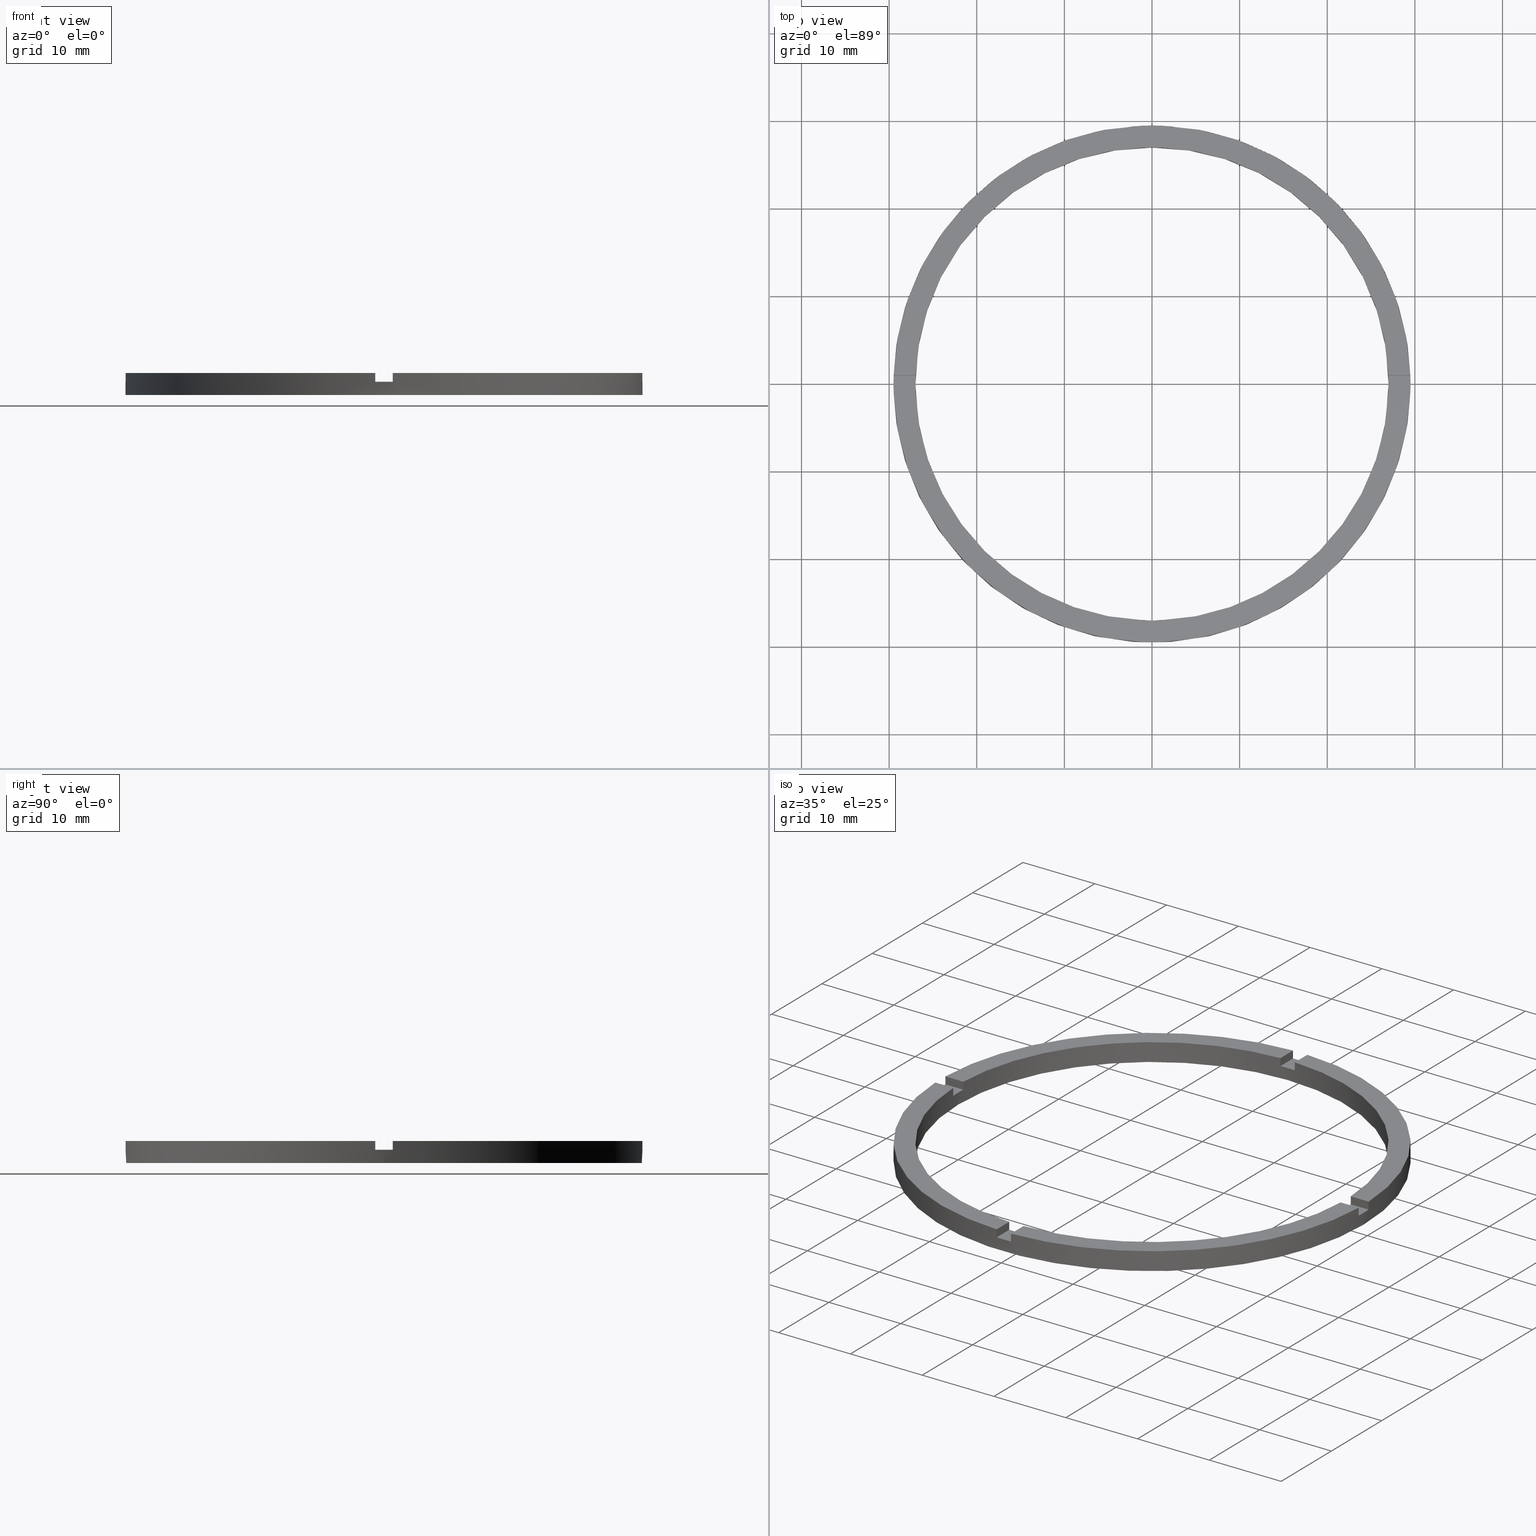
[diagram: canonical four-view strip — front | top / right | iso, engineering-drawing reading convention]
A machine part, canonical four-view strip (front | top / right | iso — engineering-drawing reading convention). The complete STEP part file that produces these views, byte-faithful:
ISO-10303-21;
HEADER;
FILE_DESCRIPTION (( 'STEP AP203' ),
    '1' );
FILE_NAME ('514122.step',
    '2024-12-26T02:39:37',
    ( 'MSI' ),
    ( '' ),
    'SwSTEP 2.0',
    'SolidWorks 2020',
    '' );
FILE_SCHEMA (( 'CONFIG_CONTROL_DESIGN' ));
ENDSEC;

DATA;
#1 = LINE ( 'NONE', #587, #252 ) ;
#2 = PLANE ( 'NONE',  #616 ) ;
#3 = CIRCLE ( 'NONE', #139, 27.00000000000000000 ) ;
#4 =( LENGTH_UNIT ( ) NAMED_UNIT ( * ) SI_UNIT ( .MILLI., .METRE. ) );
#5 = CIRCLE ( 'NONE', #579, 27.00000000000000000 ) ;
#6 = VECTOR ( 'NONE', #585, 1000.000000000000000 ) ;
#7 = DIRECTION ( 'NONE',  ( 1.951563910473908228E-16, -1.000000000000000000, 0.000000000000000000 ) ) ;
#8 = FACE_OUTER_BOUND ( 'NONE', #201, .T. ) ;
#9 = DIRECTION ( 'NONE',  ( 0.000000000000000000, 0.000000000000000000, 1.000000000000000000 ) ) ;
#10 = LINE ( 'NONE', #686, #268 ) ;
#11 = CIRCLE ( 'NONE', #441, 27.00000000000000000 ) ;
#12 = AXIS2_PLACEMENT_3D ( 'NONE', #379, #434, #514 ) ;
#13 = EDGE_CURVE ( 'NONE', #750, #728, #457, .T. ) ;
#14 = EDGE_CURVE ( 'NONE', #164, #415, #193, .T. ) ;
#15 = CARTESIAN_POINT ( 'NONE',  ( 0.9999999999998369082, -19.50000000000018474, 1.500000000000000000 ) ) ;
#16 = APPROVAL_STATUS ( 'not_yet_approved' ) ;
#17 = PERSON_AND_ORGANIZATION ( #143, #498 ) ;
#18 = EDGE_CURVE ( 'NONE', #236, #504, #195, .T. ) ;
#19 = APPROVAL_DATE_TIME ( #303, #106 ) ;
#20 = COORDINATED_UNIVERSAL_TIME_OFFSET ( 8, 0, .AHEAD. ) ;
#21 = PERSON_AND_ORGANIZATION ( #143, #498 ) ;
#22 = AXIS2_PLACEMENT_3D ( 'NONE', #138, #308, #87 ) ;
#23 = CARTESIAN_POINT ( 'NONE',  ( 19.50000000000000000, 0.9999999999998404610, 1.500000000000000000 ) ) ;
#24 = CIRCLE ( 'NONE', #708, 29.50000000000000355 ) ;
#25 = LINE ( 'NONE', #489, #547 ) ;
#26 = DIRECTION ( 'NONE',  ( -0.000000000000000000, 0.000000000000000000, 1.000000000000000000 ) ) ;
#27 = PERSON_AND_ORGANIZATION ( #143, #498 ) ;
#28 = DATE_AND_TIME ( #282, #291 ) ;
#29 = APPROVAL_DATE_TIME ( #28, #279 ) ;
#30 = COORDINATED_UNIVERSAL_TIME_OFFSET ( 8, 0, .AHEAD. ) ;
#31 = VECTOR ( 'NONE', #160, 1000.000000000000000 ) ;
#32 = DIRECTION ( 'NONE',  ( 0.000000000000000000, 0.000000000000000000, 1.000000000000000000 ) ) ;
#33 = AXIS2_PLACEMENT_3D ( 'NONE', #343, #588, #630 ) ;
#34 = VECTOR ( 'NONE', #652, 1000.000000000000000 ) ;
#35 = DIRECTION ( 'NONE',  ( -0.000000000000000000, -1.000000000000000000, -0.000000000000000000 ) ) ;
#36 = DATE_AND_TIME ( #310, #562 ) ;
#37 = LINE ( 'NONE', #414, #311 ) ;
#38 = FACE_OUTER_BOUND ( 'NONE', #662, .T. ) ;
#39 = LINE ( 'NONE', #596, #40 ) ;
#40 = VECTOR ( 'NONE', #353, 1000.000000000000000 ) ;
#41 = CARTESIAN_POINT ( 'NONE',  ( 0.000000000000000000, 0.000000000000000000, 1.500000000000000000 ) ) ;
#42 = FACE_OUTER_BOUND ( 'NONE', #422, .T. ) ;
#43 = EDGE_CURVE ( 'NONE', #151, #684, #459, .T. ) ;
#44 = LINE ( 'NONE', #152, #567 ) ;
#45 = LINE ( 'NONE', #60, #320 ) ;
#46 = DIRECTION ( 'NONE',  ( -0.000000000000000000, -0.000000000000000000, -1.000000000000000000 ) ) ;
#47 = CARTESIAN_POINT ( 'NONE',  ( -29.48304597561114093, 0.9999999999999749090, 2.500000000000000000 ) ) ;
#48 = FACE_OUTER_BOUND ( 'NONE', #689, .T. ) ;
#49 = LINE ( 'NONE', #76, #323 ) ;
#50 = DIRECTION ( 'NONE',  ( 1.000000000000000000, 0.000000000000000000, 0.000000000000000000 ) ) ;
#51 = CARTESIAN_POINT ( 'NONE',  ( 0.000000000000000000, 0.000000000000000000, 2.500000000000000000 ) ) ;
#52 = EDGE_CURVE ( 'NONE', #196, #220, #197, .T. ) ;
#53 = EDGE_CURVE ( 'NONE', #413, #780, #571, .T. ) ;
#54 = DIRECTION ( 'NONE',  ( -0.000000000000000000, -0.000000000000000000, -1.000000000000000000 ) ) ;
#55 = AXIS2_PLACEMENT_3D ( 'NONE', #632, #690, #336 ) ;
#56 = ADVANCED_BREP_SHAPE_REPRESENTATION ( '514122', ( #408, #539 ), #692 ) ;
#57 = DIRECTION ( 'NONE',  ( 0.000000000000000000, 0.000000000000000000, 1.000000000000000000 ) ) ;
#58 = CC_DESIGN_PERSON_AND_ORGANIZATION_ASSIGNMENT ( #548, #717, ( #361 ) ) ;
#59 = DIRECTION ( 'NONE',  ( -0.000000000000000000, -0.000000000000000000, -1.000000000000000000 ) ) ;
#60 = CARTESIAN_POINT ( 'NONE',  ( -29.50000000000000355, 0.000000000000000000, 2.500000000000000000 ) ) ;
#61 = CARTESIAN_POINT ( 'NONE',  ( 0.000000000000000000, 0.000000000000000000, 1.500000000000000000 ) ) ;
#62 = PLANE ( 'NONE',  #625 ) ;
#63 = CARTESIAN_POINT ( 'NONE',  ( 0.000000000000000000, 0.000000000000000000, 0.000000000000000000 ) ) ;
#64 = DATE_TIME_ROLE ( 'creation_date' ) ;
#65 = APPROVAL_ROLE ( '' ) ;
#66 = AXIS2_PLACEMENT_3D ( 'NONE', #329, #599, #359 ) ;
#67 = AXIS2_PLACEMENT_3D ( 'NONE', #23, #68, #112 ) ;
#68 = DIRECTION ( 'NONE',  ( -6.505213034913027837E-17, 1.000000000000000000, 0.000000000000000000 ) ) ;
#69 = ADVANCED_FACE ( 'NONE', ( #42 ), #557, .F. ) ;
#70 = CARTESIAN_POINT ( 'NONE',  ( 27.00000000000000000, 3.306546357697853733E-15, 0.000000000000000000 ) ) ;
#71 = DIRECTION ( 'NONE',  ( 1.000000000000000000, 0.000000000000000000, 0.000000000000000000 ) ) ;
#72 = EDGE_CURVE ( 'NONE', #504, #179, #550, .T. ) ;
#73 = CARTESIAN_POINT ( 'NONE',  ( 0.000000000000000000, 0.000000000000000000, 1.500000000000000000 ) ) ;
#74 = PLANE ( 'NONE',  #66 ) ;
#75 = DIRECTION ( 'NONE',  ( 0.000000000000000000, 1.000000000000000000, 0.000000000000000000 ) ) ;
#76 = CARTESIAN_POINT ( 'NONE',  ( -27.00000000000000000, 0.000000000000000000, 2.500000000000000000 ) ) ;
#77 = APPROVAL ( #406, 'δָ��' ) ;
#78 = DIRECTION ( 'NONE',  ( 1.000000000000000000, 0.000000000000000000, 0.000000000000000000 ) ) ;
#79 = DIRECTION ( 'NONE',  ( 0.000000000000000000, 0.000000000000000000, 1.000000000000000000 ) ) ;
#80 = DIRECTION ( 'NONE',  ( 1.000000000000000000, 0.000000000000000000, -0.000000000000000000 ) ) ;
#81 = CARTESIAN_POINT ( 'NONE',  ( 29.50000000000000355, 3.612708057484692393E-15, 1.500000000000000000 ) ) ;
#82 = DIRECTION ( 'NONE',  ( 0.000000000000000000, -0.000000000000000000, 1.000000000000000000 ) ) ;
#83 = DIRECTION ( 'NONE',  ( -1.000000000000000000, -1.301042606982605567E-16, 0.000000000000000000 ) ) ;
#84 = DIRECTION ( 'NONE',  ( 0.000000000000000000, -0.000000000000000000, 1.000000000000000000 ) ) ;
#85 = EDGE_CURVE ( 'NONE', #470, #131, #25, .T. ) ;
#86 = AXIS2_PLACEMENT_3D ( 'NONE', #629, #771, #50 ) ;
#87 = DIRECTION ( 'NONE',  ( 1.000000000000000000, 0.000000000000000000, 0.000000000000000000 ) ) ;
#88 = ADVANCED_FACE ( 'NONE', ( #568 ), #62, .T. ) ;
#89 = DIRECTION ( 'NONE',  ( -0.000000000000000000, -1.000000000000000000, -0.000000000000000000 ) ) ;
#90 = CARTESIAN_POINT ( 'NONE',  ( 29.48304597561113383, -1.000000000000158984, 1.500000000000000000 ) ) ;
#91 = FACE_OUTER_BOUND ( 'NONE', #178, .T. ) ;
#92 = DIRECTION ( 'NONE',  ( 1.000000000000000000, 0.000000000000000000, 0.000000000000000000 ) ) ;
#93 = LINE ( 'NONE', #659, #100 ) ;
#94 = AXIS2_PLACEMENT_3D ( 'NONE', #513, #647, #537 ) ;
#95 = CARTESIAN_POINT ( 'NONE',  ( 29.50000000000000355, 3.612708057484692393E-15, 0.000000000000000000 ) ) ;
#96 = EDGE_CURVE ( 'NONE', #704, #491, #565, .T. ) ;
#97 = DIRECTION ( 'NONE',  ( -0.000000000000000000, -0.000000000000000000, -1.000000000000000000 ) ) ;
#98 = AXIS2_PLACEMENT_3D ( 'NONE', #150, #182, #330 ) ;
#99 = EDGE_CURVE ( 'NONE', #421, #491, #307, .T. ) ;
#100 = VECTOR ( 'NONE', #79, 1000.000000000000000 ) ;
#101 = CARTESIAN_POINT ( 'NONE',  ( 0.9999999999999756861, 29.48304597561114093, 2.500000000000000000 ) ) ;
#102 = DIRECTION ( 'NONE',  ( 0.000000000000000000, 0.000000000000000000, 1.000000000000000000 ) ) ;
#103 = CARTESIAN_POINT ( 'NONE',  ( 29.48304597561114448, 0.9999999999998411271, 1.500000000000000000 ) ) ;
#104 = AXIS2_PLACEMENT_3D ( 'NONE', #502, #574, #364 ) ;
#105 = VECTOR ( 'NONE', #765, 1000.000000000000000 ) ;
#106 = APPROVAL ( #492, 'δָ��' ) ;
#107 = CC_DESIGN_SECURITY_CLASSIFICATION ( #610, ( #392 ) ) ;
#108 = PLANE ( 'NONE',  #744 ) ;
#109 = FACE_OUTER_BOUND ( 'NONE', #488, .T. ) ;
#110 = APPLICATION_CONTEXT ( 'configuration controlled 3d designs of mechanical parts and assemblies' ) ;
#111 = LINE ( 'NONE', #198, #115 ) ;
#112 = DIRECTION ( 'NONE',  ( -1.000000000000000000, -6.505213034913027837E-17, 0.000000000000000000 ) ) ;
#113 = EDGE_CURVE ( 'NONE', #407, #691, #564, .T. ) ;
#114 = CIRCLE ( 'NONE', #119, 29.50000000000000355 ) ;
#115 = VECTOR ( 'NONE', #188, 1000.000000000000000 ) ;
#116 = DIRECTION ( 'NONE',  ( -0.000000000000000000, 0.000000000000000000, 1.000000000000000000 ) ) ;
#117 = DIRECTION ( 'NONE',  ( 0.000000000000000000, 0.000000000000000000, 1.000000000000000000 ) ) ;
#118 = DIRECTION ( 'NONE',  ( 0.000000000000000000, 0.000000000000000000, 1.000000000000000000 ) ) ;
#119 = AXIS2_PLACEMENT_3D ( 'NONE', #423, #736, #622 ) ;
#120 = EDGE_CURVE ( 'NONE', #223, #715, #24, .T. ) ;
#121 = EDGE_CURVE ( 'NONE', #409, #215, #293, .T. ) ;
#122 = DIRECTION ( 'NONE',  ( 1.000000000000000000, 0.000000000000000000, -0.000000000000000000 ) ) ;
#123 = DIRECTION ( 'NONE',  ( 1.000000000000000000, 0.000000000000000000, 0.000000000000000000 ) ) ;
#124 = CARTESIAN_POINT ( 'NONE',  ( 29.48304597561113383, -1.000000000000158984, 2.500000000000000000 ) ) ;
#125 = EDGE_CURVE ( 'NONE', #248, #693, #37, .T. ) ;
#126 = FACE_OUTER_BOUND ( 'NONE', #417, .T. ) ;
#127 = CARTESIAN_POINT ( 'NONE',  ( 0.000000000000000000, 0.000000000000000000, 0.000000000000000000 ) ) ;
#128 = CARTESIAN_POINT ( 'NONE',  ( -29.48304597561113738, -1.000000000000025091, 2.500000000000000000 ) ) ;
#129 = CC_DESIGN_PERSON_AND_ORGANIZATION_ASSIGNMENT ( #296, #602, ( #392 ) ) ;
#130 = CC_DESIGN_APPROVAL ( #279, ( #610 ) ) ;
#131 = VERTEX_POINT ( 'NONE', #607 ) ;
#132 = ORIENTED_EDGE ( 'NONE', *, *, #778, .F. ) ;
#133 = VECTOR ( 'NONE', #340, 1000.000000000000000 ) ;
#134 = DIRECTION ( 'NONE',  ( 0.000000000000000000, 0.000000000000000000, 1.000000000000000000 ) ) ;
#135 = ORIENTED_EDGE ( 'NONE', *, *, #362, .T. ) ;
#136 = ADVANCED_FACE ( 'NONE', ( #38 ), #555, .F. ) ;
#137 = ORIENTED_EDGE ( 'NONE', *, *, #43, .F. ) ;
#138 = CARTESIAN_POINT ( 'NONE',  ( 0.000000000000000000, 0.000000000000000000, 0.000000000000000000 ) ) ;
#139 = AXIS2_PLACEMENT_3D ( 'NONE', #61, #318, #466 ) ;
#140 = DIRECTION ( 'NONE',  ( 1.000000000000000000, 0.000000000000000000, 0.000000000000000000 ) ) ;
#141 = DIRECTION ( 'NONE',  ( 0.000000000000000000, 0.000000000000000000, 1.000000000000000000 ) ) ;
#142 = ORIENTED_EDGE ( 'NONE', *, *, #608, .F. ) ;
#143 = PERSON ( 'δָ��', 'δָ��', 'δָ��', ('δָ��'), ('δָ��'), ('δָ��') ) ;
#144 = ORIENTED_EDGE ( 'NONE', *, *, #72, .T. ) ;
#145 = VERTEX_POINT ( 'NONE', #186 ) ;
#146 = VERTEX_POINT ( 'NONE', #271 ) ;
#147 = DIRECTION ( 'NONE',  ( 0.000000000000000000, 0.000000000000000000, 1.000000000000000000 ) ) ;
#148 = EDGE_CURVE ( 'NONE', #750, #504, #566, .T. ) ;
#149 = ORIENTED_EDGE ( 'NONE', *, *, #396, .T. ) ;
#150 = CARTESIAN_POINT ( 'NONE',  ( 0.000000000000000000, 0.000000000000000000, 2.500000000000000000 ) ) ;
#151 = VERTEX_POINT ( 'NONE', #305 ) ;
#152 = CARTESIAN_POINT ( 'NONE',  ( 19.50000000000000000, -1.000000000000159650, 1.500000000000000000 ) ) ;
#153 = ORIENTED_EDGE ( 'NONE', *, *, #284, .F. ) ;
#154 = ORIENTED_EDGE ( 'NONE', *, *, #600, .F. ) ;
#155 = ORIENTED_EDGE ( 'NONE', *, *, #309, .T. ) ;
#156 = ORIENTED_EDGE ( 'NONE', *, *, #259, .T. ) ;
#157 = EDGE_LOOP ( 'NONE', ( #726, #443, #700, #758 ) ) ;
#158 = ORIENTED_EDGE ( 'NONE', *, *, #386, .T. ) ;
#159 = ORIENTED_EDGE ( 'NONE', *, *, #148, .F. ) ;
#160 = DIRECTION ( 'NONE',  ( 1.000000000000000000, 6.505213034913027837E-17, 0.000000000000000000 ) ) ;
#161 = VERTEX_POINT ( 'NONE', #90 ) ;
#162 = ORIENTED_EDGE ( 'NONE', *, *, #600, .T. ) ;
#163 = ORIENTED_EDGE ( 'NONE', *, *, #85, .F. ) ;
#164 = VERTEX_POINT ( 'NONE', #594 ) ;
#165 = ORIENTED_EDGE ( 'NONE', *, *, #357, .T. ) ;
#166 = EDGE_CURVE ( 'NONE', #228, #223, #317, .T. ) ;
#167 = EDGE_CURVE ( 'NONE', #223, #754, #45, .T. ) ;
#168 = EDGE_LOOP ( 'NONE', ( #505, #493, #477, #722 ) ) ;
#169 = ORIENTED_EDGE ( 'NONE', *, *, #13, .F. ) ;
#170 = AXIS2_PLACEMENT_3D ( 'NONE', #373, #82, #577 ) ;
#171 = CARTESIAN_POINT ( 'NONE',  ( 19.50000000000000000, -1.000000000000159650, 2.500000000000000000 ) ) ;
#172 = CARTESIAN_POINT ( 'NONE',  ( 0.000000000000000000, 0.000000000000000000, 2.500000000000000000 ) ) ;
#173 = EDGE_CURVE ( 'NONE', #780, #215, #49, .T. ) ;
#174 = ORIENTED_EDGE ( 'NONE', *, *, #597, .F. ) ;
#175 = ORIENTED_EDGE ( 'NONE', *, *, #113, .T. ) ;
#176 = ORIENTED_EDGE ( 'NONE', *, *, #635, .T. ) ;
#177 = PERSON_AND_ORGANIZATION_ROLE ( 'creator' ) ;
#178 = EDGE_LOOP ( 'NONE', ( #480, #767, #741, #716 ) ) ;
#179 = VERTEX_POINT ( 'NONE', #124 ) ;
#180 = ORIENTED_EDGE ( 'NONE', *, *, #583, .T. ) ;
#181 = ORIENTED_EDGE ( 'NONE', *, *, #386, .F. ) ;
#182 = DIRECTION ( 'NONE',  ( 0.000000000000000000, 0.000000000000000000, 1.000000000000000000 ) ) ;
#183 = ORIENTED_EDGE ( 'NONE', *, *, #113, .F. ) ;
#184 = ORIENTED_EDGE ( 'NONE', *, *, #313, .F. ) ;
#185 = EDGE_LOOP ( 'NONE', ( #142, #448, #183, #435 ) ) ;
#186 = CARTESIAN_POINT ( 'NONE',  ( -1.000000000000024203, 29.48304597561113738, 2.500000000000000000 ) ) ;
#187 = ORIENTED_EDGE ( 'NONE', *, *, #605, .T. ) ;
#188 = DIRECTION ( 'NONE',  ( -0.000000000000000000, -0.000000000000000000, -1.000000000000000000 ) ) ;
#189 = ORIENTED_EDGE ( 'NONE', *, *, #461, .T. ) ;
#190 = CARTESIAN_POINT ( 'NONE',  ( 0.9999999999999756861, 29.48304597561114093, 2.500000000000000000 ) ) ;
#191 = CARTESIAN_POINT ( 'NONE',  ( 0.9999999999999756861, 19.50000000000000355, 1.500000000000000000 ) ) ;
#192 = DIRECTION ( 'NONE',  ( -1.000000000000000000, 0.000000000000000000, 0.000000000000000000 ) ) ;
#193 = CIRCLE ( 'NONE', #762, 27.00000000000000000 ) ;
#194 = AXIS2_PLACEMENT_3D ( 'NONE', #41, #631, #586 ) ;
#195 = CIRCLE ( 'NONE', #212, 27.00000000000000000 ) ;
#196 = VERTEX_POINT ( 'NONE', #337 ) ;
#197 = LINE ( 'NONE', #580, #287 ) ;
#198 = CARTESIAN_POINT ( 'NONE',  ( 0.9999999999998382405, -29.48304597561114448, 2.500000000000000000 ) ) ;
#199 = ORIENTED_EDGE ( 'NONE', *, *, #43, .T. ) ;
#200 = PLANE ( 'NONE',  #350 ) ;
#201 = EDGE_LOOP ( 'NONE', ( #685, #669, #683, #137 ) ) ;
#202 = DIRECTION ( 'NONE',  ( 0.000000000000000000, 0.000000000000000000, 1.000000000000000000 ) ) ;
#203 = ORIENTED_EDGE ( 'NONE', *, *, #778, .T. ) ;
#204 = CARTESIAN_POINT ( 'NONE',  ( -1.000000000000162981, -19.50000000000018474, 1.500000000000000000 ) ) ;
#205 = FACE_OUTER_BOUND ( 'NONE', #712, .T. ) ;
#206 = ORIENTED_EDGE ( 'NONE', *, *, #52, .F. ) ;
#207 = ADVANCED_FACE ( 'NONE', ( #48 ), #275, .T. ) ;
#208 = LINE ( 'NONE', #648, #468 ) ;
#209 = DIRECTION ( 'NONE',  ( 0.000000000000000000, 0.000000000000000000, 1.000000000000000000 ) ) ;
#210 = DIRECTION ( 'NONE',  ( -0.000000000000000000, -0.000000000000000000, -1.000000000000000000 ) ) ;
#211 = CARTESIAN_POINT ( 'NONE',  ( 29.50000000000000355, 3.612708057484692393E-15, 2.500000000000000000 ) ) ;
#212 = AXIS2_PLACEMENT_3D ( 'NONE', #335, #375, #663 ) ;
#213 = ORIENTED_EDGE ( 'NONE', *, *, #605, .F. ) ;
#214 = DIRECTION ( 'NONE',  ( 0.000000000000000000, 0.000000000000000000, 1.000000000000000000 ) ) ;
#215 = VERTEX_POINT ( 'NONE', #515 ) ;
#216 = ORIENTED_EDGE ( 'NONE', *, *, #638, .T. ) ;
#217 = ADVANCED_FACE ( 'NONE', ( #572 ), #325, .F. ) ;
#218 = CARTESIAN_POINT ( 'NONE',  ( 0.000000000000000000, 0.000000000000000000, 2.500000000000000000 ) ) ;
#219 = ORIENTED_EDGE ( 'NONE', *, *, #583, .F. ) ;
#220 = VERTEX_POINT ( 'NONE', #47 ) ;
#221 = CARTESIAN_POINT ( 'NONE',  ( 27.00000000000000000, 3.306546357697853733E-15, 1.500000000000000000 ) ) ;
#222 = ORIENTED_EDGE ( 'NONE', *, *, #666, .T. ) ;
#223 = VERTEX_POINT ( 'NONE', #628 ) ;
#224 = DIRECTION ( 'NONE',  ( 1.000000000000000000, 0.000000000000000000, 0.000000000000000000 ) ) ;
#225 = ORIENTED_EDGE ( 'NONE', *, *, #641, .T. ) ;
#226 = ORIENTED_EDGE ( 'NONE', *, *, #14, .F. ) ;
#227 = DIRECTION ( 'NONE',  ( -1.000000000000000000, 0.000000000000000000, 0.000000000000000000 ) ) ;
#228 = VERTEX_POINT ( 'NONE', #380 ) ;
#229 = CIRCLE ( 'NONE', #642, 29.50000000000000355 ) ;
#230 = CARTESIAN_POINT ( 'NONE',  ( 0.9999999999998382405, -29.48304597561114448, 1.500000000000000000 ) ) ;
#231 = ORIENTED_EDGE ( 'NONE', *, *, #461, .F. ) ;
#232 = ORIENTED_EDGE ( 'NONE', *, *, #509, .F. ) ;
#233 = CIRCLE ( 'NONE', #341, 27.00000000000000000 ) ;
#234 = ORIENTED_EDGE ( 'NONE', *, *, #96, .T. ) ;
#235 = CARTESIAN_POINT ( 'NONE',  ( -27.00000000000000000, 0.000000000000000000, 1.500000000000000000 ) ) ;
#236 = VERTEX_POINT ( 'NONE', #660 ) ;
#237 = ORIENTED_EDGE ( 'NONE', *, *, #356, .T. ) ;
#238 = CARTESIAN_POINT ( 'NONE',  ( 19.50000000000000000, 0.9999999999998404610, 2.500000000000000000 ) ) ;
#239 = CARTESIAN_POINT ( 'NONE',  ( 0.000000000000000000, 0.000000000000000000, 2.500000000000000000 ) ) ;
#240 = ORIENTED_EDGE ( 'NONE', *, *, #319, .F. ) ;
#241 = PERSON_AND_ORGANIZATION ( #143, #498 ) ;
#242 = ORIENTED_EDGE ( 'NONE', *, *, #624, .F. ) ;
#243 = CARTESIAN_POINT ( 'NONE',  ( -1.000000000000161871, -29.48304597561113383, 2.500000000000000000 ) ) ;
#244 = PERSON_AND_ORGANIZATION ( #143, #498 ) ;
#245 = AXIS2_PLACEMENT_3D ( 'NONE', #618, #209, #387 ) ;
#246 = CYLINDRICAL_SURFACE ( 'NONE', #376, 29.50000000000000355 ) ;
#247 = PLANE ( 'NONE',  #582 ) ;
#248 = VERTEX_POINT ( 'NONE', #668 ) ;
#249 = APPROVAL_PERSON_ORGANIZATION ( #244, #77, #366 ) ;
#250 = PERSON_AND_ORGANIZATION_ROLE ( 'classification_officer' ) ;
#251 = VERTEX_POINT ( 'NONE', #748 ) ;
#252 = VECTOR ( 'NONE', #540, 1000.000000000000000 ) ;
#253 = ORIENTED_EDGE ( 'NONE', *, *, #655, .T. ) ;
#254 = DIRECTION ( 'NONE',  ( -1.000000000000000000, -6.505213034913027837E-17, -0.000000000000000000 ) ) ;
#255 = VECTOR ( 'NONE', #59, 1000.000000000000000 ) ;
#256 = ORIENTED_EDGE ( 'NONE', *, *, #338, .F. ) ;
#257 = FACE_OUTER_BOUND ( 'NONE', #699, .T. ) ;
#258 = DIRECTION ( 'NONE',  ( 0.000000000000000000, 0.000000000000000000, 1.000000000000000000 ) ) ;
#259 = EDGE_CURVE ( 'NONE', #691, #131, #573, .T. ) ;
#260 = FACE_OUTER_BOUND ( 'NONE', #157, .T. ) ;
#261 = PERSON_AND_ORGANIZATION_ROLE ( 'design_owner' ) ;
#262 = VECTOR ( 'NONE', #89, 1000.000000000000000 ) ;
#263 = AXIS2_PLACEMENT_3D ( 'NONE', #322, #371, #333 ) ;
#264 = CARTESIAN_POINT ( 'NONE',  ( 0.000000000000000000, 0.000000000000000000, 1.500000000000000000 ) ) ;
#265 = VECTOR ( 'NONE', #593, 1000.000000000000000 ) ;
#266 = LINE ( 'NONE', #589, #528 ) ;
#267 = CARTESIAN_POINT ( 'NONE',  ( 29.48304597561114448, 0.9999999999998411271, 2.500000000000000000 ) ) ;
#268 = VECTOR ( 'NONE', #644, 1000.000000000000000 ) ;
#269 = CARTESIAN_POINT ( 'NONE',  ( 0.000000000000000000, 0.000000000000000000, 1.500000000000000000 ) ) ;
#270 = LINE ( 'NONE', #455, #272 ) ;
#271 = CARTESIAN_POINT ( 'NONE',  ( -1.000000000000024203, 29.48304597561113738, 1.500000000000000000 ) ) ;
#272 = VECTOR ( 'NONE', #46, 1000.000000000000000 ) ;
#273 = FACE_OUTER_BOUND ( 'NONE', #168, .T. ) ;
#274 = ADVANCED_FACE ( 'NONE', ( #109 ), #445, .F. ) ;
#275 = PLANE ( 'NONE',  #354 ) ;
#276 = LINE ( 'NONE', #342, #517 ) ;
#277 = DIRECTION ( 'NONE',  ( 1.000000000000000000, 0.000000000000000000, 0.000000000000000000 ) ) ;
#278 = COORDINATED_UNIVERSAL_TIME_OFFSET ( 8, 0, .AHEAD. ) ;
#279 = APPROVAL ( #16, 'δָ��' ) ;
#280 = PLANE ( 'NONE',  #12 ) ;
#281 = DATE_AND_TIME ( #544, #551 ) ;
#282 = CALENDAR_DATE ( 2024, 26, 12 ) ;
#283 = DIRECTION ( 'NONE',  ( 0.000000000000000000, 0.000000000000000000, 1.000000000000000000 ) ) ;
#284 = EDGE_CURVE ( 'NONE', #145, #146, #645, .T. ) ;
#285 = DIRECTION ( 'NONE',  ( 1.000000000000000000, 0.000000000000000000, 0.000000000000000000 ) ) ;
#286 = DIRECTION ( 'NONE',  ( -0.000000000000000000, -0.000000000000000000, -1.000000000000000000 ) ) ;
#287 = VECTOR ( 'NONE', #613, 1000.000000000000000 ) ;
#288 = CARTESIAN_POINT ( 'NONE',  ( 0.000000000000000000, 0.000000000000000000, 2.500000000000000000 ) ) ;
#289 = VECTOR ( 'NONE', #9, 1000.000000000000000 ) ;
#290 = DIRECTION ( 'NONE',  ( 0.000000000000000000, -0.000000000000000000, 1.000000000000000000 ) ) ;
#291 = LOCAL_TIME ( 10, 39, 37.00000000000000000, #278 ) ;
#292 = DATE_AND_TIME ( #542, #777 ) ;
#293 = CIRCLE ( 'NONE', #263, 27.00000000000000000 ) ;
#294 = APPROVAL_DATE_TIME ( #292, #77 ) ;
#295 = EDGE_CURVE ( 'NONE', #701, #664, #397, .T. ) ;
#296 = PERSON_AND_ORGANIZATION ( #143, #498 ) ;
#297 = CARTESIAN_POINT ( 'NONE',  ( -1.000000000000162315, -26.98147512646407620, 2.500000000000000000 ) ) ;
#298 = PERSON_AND_ORGANIZATION ( #143, #498 ) ;
#299 = CARTESIAN_POINT ( 'NONE',  ( 26.98147512646408686, 0.9999999999998409050, 2.500000000000000000 ) ) ;
#300 = SHAPE_DEFINITION_REPRESENTATION ( #753, #56 ) ;
#301 = DIRECTION ( 'NONE',  ( 0.000000000000000000, 0.000000000000000000, 1.000000000000000000 ) ) ;
#302 = CARTESIAN_POINT ( 'NONE',  ( 26.98147512646407620, -1.000000000000159206, 1.500000000000000000 ) ) ;
#303 = DATE_AND_TIME ( #552, #546 ) ;
#304 = ADVANCED_FACE ( 'NONE', ( #126 ), #590, .T. ) ;
#305 = CARTESIAN_POINT ( 'NONE',  ( 0.9999999999999756861, 29.48304597561114093, 1.500000000000000000 ) ) ;
#306 = AXIS2_PLACEMENT_3D ( 'NONE', #612, #26, #71 ) ;
#307 = CIRCLE ( 'NONE', #98, 29.50000000000000355 ) ;
#308 = DIRECTION ( 'NONE',  ( 0.000000000000000000, 0.000000000000000000, 1.000000000000000000 ) ) ;
#309 = EDGE_CURVE ( 'NONE', #151, #146, #654, .T. ) ;
#310 = CALENDAR_DATE ( 2024, 26, 12 ) ;
#311 = VECTOR ( 'NONE', #495, 1000.000000000000000 ) ;
#312 = CARTESIAN_POINT ( 'NONE',  ( 0.9999999999999756861, 26.98147512646408330, 2.500000000000000000 ) ) ;
#313 = EDGE_CURVE ( 'NONE', #764, #179, #114, .T. ) ;
#314 = LINE ( 'NONE', #474, #752 ) ;
#315 = FACE_OUTER_BOUND ( 'NONE', #404, .T. ) ;
#316 = VECTOR ( 'NONE', #141, 1000.000000000000000 ) ;
#317 = CIRCLE ( 'NONE', #656, 29.50000000000000355 ) ;
#318 = DIRECTION ( 'NONE',  ( 0.000000000000000000, 0.000000000000000000, 1.000000000000000000 ) ) ;
#319 = EDGE_CURVE ( 'NONE', #413, #196, #400, .T. ) ;
#320 = VECTOR ( 'NONE', #97, 1000.000000000000000 ) ;
#321 = PRODUCT ( '514122', '514122', '', ( #563 ) ) ;
#322 = CARTESIAN_POINT ( 'NONE',  ( 0.000000000000000000, 0.000000000000000000, 0.000000000000000000 ) ) ;
#323 = VECTOR ( 'NONE', #54, 1000.000000000000000 ) ;
#324 = DIRECTION ( 'NONE',  ( 1.000000000000000000, 6.505213034913027837E-17, 0.000000000000000000 ) ) ;
#325 = CYLINDRICAL_SURFACE ( 'NONE', #332, 27.00000000000000000 ) ;
#326 = CARTESIAN_POINT ( 'NONE',  ( 19.50000000000000000, -1.000000000000159650, 1.500000000000000000 ) ) ;
#327 = SECURITY_CLASSIFICATION_LEVEL ( 'unclassified' ) ;
#328 = CC_DESIGN_DATE_AND_TIME_ASSIGNMENT ( #36, #606, ( #610 ) ) ;
#329 = CARTESIAN_POINT ( 'NONE',  ( 0.000000000000000000, 0.000000000000000000, 0.000000000000000000 ) ) ;
#330 = DIRECTION ( 'NONE',  ( 1.000000000000000000, 0.000000000000000000, 0.000000000000000000 ) ) ;
#331 = AXIS2_PLACEMENT_3D ( 'NONE', #472, #290, #637 ) ;
#332 = AXIS2_PLACEMENT_3D ( 'NONE', #675, #578, #192 ) ;
#333 = DIRECTION ( 'NONE',  ( 1.000000000000000000, 0.000000000000000000, 0.000000000000000000 ) ) ;
#334 = DIRECTION ( 'NONE',  ( 0.000000000000000000, 0.000000000000000000, 1.000000000000000000 ) ) ;
#335 = CARTESIAN_POINT ( 'NONE',  ( 0.000000000000000000, 0.000000000000000000, 2.500000000000000000 ) ) ;
#336 = DIRECTION ( 'NONE',  ( 1.000000000000000000, 0.000000000000000000, -0.000000000000000000 ) ) ;
#337 = CARTESIAN_POINT ( 'NONE',  ( -26.98147512646408330, 0.9999999999999754641, 2.500000000000000000 ) ) ;
#338 = EDGE_CURVE ( 'NONE', #161, #701, #661, .T. ) ;
#339 = EDGE_CURVE ( 'NONE', #764, #482, #111, .T. ) ;
#340 = DIRECTION ( 'NONE',  ( 0.000000000000000000, 0.000000000000000000, 1.000000000000000000 ) ) ;
#341 = AXIS2_PLACEMENT_3D ( 'NONE', #239, #639, #224 ) ;
#342 = CARTESIAN_POINT ( 'NONE',  ( 0.9999999999998369082, -19.50000000000018474, 2.500000000000000000 ) ) ;
#343 = CARTESIAN_POINT ( 'NONE',  ( 0.000000000000000000, 0.000000000000000000, 2.500000000000000000 ) ) ;
#344 = DIRECTION ( 'NONE',  ( 0.000000000000000000, 0.000000000000000000, 1.000000000000000000 ) ) ;
#345 = DIRECTION ( 'NONE',  ( -0.000000000000000000, -0.000000000000000000, -1.000000000000000000 ) ) ;
#346 = ADVANCED_FACE ( 'NONE', ( #389 ), #733, .T. ) ;
#347 = DIRECTION ( 'NONE',  ( 1.000000000000000000, 0.000000000000000000, 0.000000000000000000 ) ) ;
#348 = DIRECTION ( 'NONE',  ( 0.000000000000000000, 0.000000000000000000, -1.000000000000000000 ) ) ;
#349 = DIRECTION ( 'NONE',  ( 0.000000000000000000, 0.000000000000000000, 1.000000000000000000 ) ) ;
#350 = AXIS2_PLACEMENT_3D ( 'NONE', #288, #214, #682 ) ;
#351 = UNCERTAINTY_MEASURE_WITH_UNIT (LENGTH_MEASURE( 1.000000000000000082E-05 ), #4, 'distance_accuracy_value', 'NONE');
#352 = DIRECTION ( 'NONE',  ( -0.000000000000000000, -0.000000000000000000, -1.000000000000000000 ) ) ;
#353 = DIRECTION ( 'NONE',  ( -0.000000000000000000, -0.000000000000000000, -1.000000000000000000 ) ) ;
#354 = AXIS2_PLACEMENT_3D ( 'NONE', #623, #118, #80 ) ;
#355 = DIRECTION ( 'NONE',  ( 1.000000000000000000, 0.000000000000000000, 0.000000000000000000 ) ) ;
#356 = EDGE_CURVE ( 'NONE', #704, #482, #649, .T. ) ;
#357 = EDGE_CURVE ( 'NONE', #251, #151, #614, .T. ) ;
#358 = PLANE ( 'NONE',  #650 ) ;
#359 = DIRECTION ( 'NONE',  ( 1.000000000000000000, 0.000000000000000000, -0.000000000000000000 ) ) ;
#360 = AXIS2_PLACEMENT_3D ( 'NONE', #204, #83, #453 ) ;
#361 = PRODUCT_DEFINITION ( 'δ֪', '', #392, #442 ) ;
#362 = EDGE_CURVE ( 'NONE', #228, #220, #93, .T. ) ;
#363 = LINE ( 'NONE', #667, #730 ) ;
#364 = DIRECTION ( 'NONE',  ( -1.000000000000000000, 0.000000000000000000, 0.000000000000000000 ) ) ;
#365 = CIRCLE ( 'NONE', #382, 27.00000000000000000 ) ;
#366 = APPROVAL_ROLE ( '' ) ;
#367 = EDGE_CURVE ( 'NONE', #691, #746, #365, .T. ) ;
#368 = AXIS2_PLACEMENT_3D ( 'NONE', #775, #57, #92 ) ;
#369 = VECTOR ( 'NONE', #399, 1000.000000000000000 ) ;
#370 = VECTOR ( 'NONE', #75, 1000.000000000000000 ) ;
#371 = DIRECTION ( 'NONE',  ( 0.000000000000000000, 0.000000000000000000, 1.000000000000000000 ) ) ;
#372 = CARTESIAN_POINT ( 'NONE',  ( 0.9999999999998377964, -26.98147512646408686, 1.500000000000000000 ) ) ;
#373 = CARTESIAN_POINT ( 'NONE',  ( 0.000000000000000000, 0.000000000000000000, 1.500000000000000000 ) ) ;
#374 = FACE_OUTER_BOUND ( 'NONE', #438, .T. ) ;
#375 = DIRECTION ( 'NONE',  ( 0.000000000000000000, 0.000000000000000000, 1.000000000000000000 ) ) ;
#376 = AXIS2_PLACEMENT_3D ( 'NONE', #51, #210, #595 ) ;
#377 = PLANE ( 'NONE',  #94 ) ;
#378 = ADVANCED_FACE ( 'NONE', ( #91 ), #280, .F. ) ;
#379 = CARTESIAN_POINT ( 'NONE',  ( -19.50000000000018829, 0.9999999999999767963, 1.500000000000000000 ) ) ;
#380 = CARTESIAN_POINT ( 'NONE',  ( -29.48304597561114093, 0.9999999999999749090, 1.500000000000000000 ) ) ;
#381 = CIRCLE ( 'NONE', #368, 29.50000000000000355 ) ;
#382 = AXIS2_PLACEMENT_3D ( 'NONE', #674, #117, #285 ) ;
#383 = CARTESIAN_POINT ( 'NONE',  ( 0.000000000000000000, 0.000000000000000000, 1.500000000000000000 ) ) ;
#384 = EDGE_CURVE ( 'NONE', #715, #419, #617, .T. ) ;
#385 = CARTESIAN_POINT ( 'NONE',  ( -1.000000000000024203, 19.50000000000000355, 2.500000000000000000 ) ) ;
#386 = EDGE_CURVE ( 'NONE', #146, #693, #363, .T. ) ;
#387 = DIRECTION ( 'NONE',  ( 1.000000000000000000, 0.000000000000000000, 0.000000000000000000 ) ) ;
#388 = DIRECTION ( 'NONE',  ( -1.301042606982605567E-16, 1.000000000000000000, -0.000000000000000000 ) ) ;
#389 = FACE_OUTER_BOUND ( 'NONE', #694, .T. ) ;
#390 = CARTESIAN_POINT ( 'NONE',  ( 0.9999999999999756861, 19.50000000000000355, 2.500000000000000000 ) ) ;
#391 = ADVANCED_FACE ( 'NONE', ( #725 ), #247, .F. ) ;
#392 = PRODUCT_DEFINITION_FORMATION_WITH_SPECIFIED_SOURCE ( '�κ�', '', #321, .NOT_KNOWN. ) ;
#393 = CARTESIAN_POINT ( 'NONE',  ( 26.98147512646408686, 0.9999999999998409050, 2.500000000000000000 ) ) ;
#394 = DIRECTION ( 'NONE',  ( 1.000000000000000000, 0.000000000000000000, 0.000000000000000000 ) ) ;
#395 = DIRECTION ( 'NONE',  ( 0.000000000000000000, 0.000000000000000000, 1.000000000000000000 ) ) ;
#396 = EDGE_CURVE ( 'NONE', #737, #491, #208, .T. ) ;
#397 = LINE ( 'NONE', #211, #653 ) ;
#398 = PLANE ( 'NONE',  #331 ) ;
#399 = DIRECTION ( 'NONE',  ( 1.000000000000000000, 1.951563910473908228E-16, -0.000000000000000000 ) ) ;
#400 = LINE ( 'NONE', #747, #133 ) ;
#401 = CARTESIAN_POINT ( 'NONE',  ( -29.50000000000000355, 0.000000000000000000, 0.000000000000000000 ) ) ;
#402 = CLOSED_SHELL ( 'NONE', ( #69, #696, #88, #437, #609, #619, #425, #676, #217, #538, #378, #304, #627, #274, #346, #136, #391, #207, #456, #633, #773 ) ) ;
#403 = EDGE_CURVE ( 'NONE', #407, #470, #729, .T. ) ;
#404 = EDGE_LOOP ( 'NONE', ( #673, #433, #181, #153 ) ) ;
#405 = DIRECTION ( 'NONE',  ( 1.000000000000000000, 0.000000000000000000, 0.000000000000000000 ) ) ;
#406 = APPROVAL_STATUS ( 'not_yet_approved' ) ;
#407 = VERTEX_POINT ( 'NONE', #475 ) ;
#408 = MANIFOLD_SOLID_BREP ( '�г�-����1', #402 ) ;
#409 = VERTEX_POINT ( 'NONE', #70 ) ;
#410 = DIRECTION ( 'NONE',  ( 1.301042606982605567E-16, -1.000000000000000000, 0.000000000000000000 ) ) ;
#411 = DIRECTION ( 'NONE',  ( 1.000000000000000000, 0.000000000000000000, 0.000000000000000000 ) ) ;
#412 = ORIENTED_EDGE ( 'NONE', *, *, #670, .F. ) ;
#413 = VERTEX_POINT ( 'NONE', #559 ) ;
#414 = CARTESIAN_POINT ( 'NONE',  ( -1.000000000000024203, 26.98147512646407975, 2.500000000000000000 ) ) ;
#415 = VERTEX_POINT ( 'NONE', #372 ) ;
#416 = ORIENTED_EDGE ( 'NONE', *, *, #121, .T. ) ;
#417 = EDGE_LOOP ( 'NONE', ( #439, #738, #734, #751, #769, #225 ) ) ;
#418 = AXIS2_PLACEMENT_3D ( 'NONE', #742, #32, #78 ) ;
#419 = VERTEX_POINT ( 'NONE', #576 ) ;
#420 = ORIENTED_EDGE ( 'NONE', *, *, #521, .T. ) ;
#421 = VERTEX_POINT ( 'NONE', #611 ) ;
#422 = EDGE_LOOP ( 'NONE', ( #497, #776, #154, #494, #713, #516, #420, #174, #440, #231, #672, #159 ) ) ;
#423 = CARTESIAN_POINT ( 'NONE',  ( 0.000000000000000000, 0.000000000000000000, 2.500000000000000000 ) ) ;
#424 = EDGE_LOOP ( 'NONE', ( #705, #256, #222, #184, #739, #490, #234, #759, #450, #677, #774, #180 ) ) ;
#425 = ADVANCED_FACE ( 'NONE', ( #205, #731 ), #74, .F. ) ;
#426 = ORIENTED_EDGE ( 'NONE', *, *, #465, .T. ) ;
#427 = CC_DESIGN_PERSON_AND_ORGANIZATION_ASSIGNMENT ( #241, #261, ( #321 ) ) ;
#428 = PRODUCT_RELATED_PRODUCT_CATEGORY ( 'detail', '', ( #321 ) ) ;
#429 = ORIENTED_EDGE ( 'NONE', *, *, #666, .F. ) ;
#430 = DIRECTION ( 'NONE',  ( 0.000000000000000000, 0.000000000000000000, 1.000000000000000000 ) ) ;
#431 = ORIENTED_EDGE ( 'NONE', *, *, #167, .F. ) ;
#432 = EDGE_LOOP ( 'NONE', ( #155, #158, #681, #165 ) ) ;
#433 = ORIENTED_EDGE ( 'NONE', *, *, #125, .T. ) ;
#434 = DIRECTION ( 'NONE',  ( -1.951563910473908228E-16, 1.000000000000000000, 0.000000000000000000 ) ) ;
#435 = ORIENTED_EDGE ( 'NONE', *, *, #601, .T. ) ;
#436 = ORIENTED_EDGE ( 'NONE', *, *, #624, .T. ) ;
#437 = ADVANCED_FACE ( 'NONE', ( #570 ), #108, .T. ) ;
#438 = EDGE_LOOP ( 'NONE', ( #511, #253, #743, #745 ) ) ;
#439 = ORIENTED_EDGE ( 'NONE', *, *, #166, .T. ) ;
#440 = ORIENTED_EDGE ( 'NONE', *, *, #14, .T. ) ;
#441 = AXIS2_PLACEMENT_3D ( 'NONE', #620, #147, #140 ) ;
#442 = DESIGN_CONTEXT ( 'detailed design', #110, 'design' ) ;
#443 = ORIENTED_EDGE ( 'NONE', *, *, #521, .F. ) ;
#444 = DIRECTION ( 'NONE',  ( -0.000000000000000000, 0.000000000000000000, 1.000000000000000000 ) ) ;
#445 = PLANE ( 'NONE',  #360 ) ;
#446 = ORIENTED_EDGE ( 'NONE', *, *, #121, .F. ) ;
#447 = ORIENTED_EDGE ( 'NONE', *, *, #295, .T. ) ;
#448 = ORIENTED_EDGE ( 'NONE', *, *, #367, .F. ) ;
#449 = ORIENTED_EDGE ( 'NONE', *, *, #703, .F. ) ;
#450 = ORIENTED_EDGE ( 'NONE', *, *, #658, .T. ) ;
#451 = DIRECTION ( 'NONE',  ( -0.000000000000000000, -0.000000000000000000, -1.000000000000000000 ) ) ;
#452 = ORIENTED_EDGE ( 'NONE', *, *, #403, .T. ) ;
#453 = DIRECTION ( 'NONE',  ( 1.301042606982605567E-16, -1.000000000000000000, 0.000000000000000000 ) ) ;
#454 = EDGE_LOOP ( 'NONE', ( #481, #203, #709, #479, #710, #176, #761, #187, #240, #476, #707, #446 ) ) ;
#455 = CARTESIAN_POINT ( 'NONE',  ( -26.98147512646407975, -1.000000000000024425, 2.500000000000000000 ) ) ;
#456 = ADVANCED_FACE ( 'NONE', ( #315 ), #377, .F. ) ;
#457 = CIRCLE ( 'NONE', #553, 27.00000000000000000 ) ;
#458 = AXIS2_PLACEMENT_3D ( 'NONE', #383, #334, #123 ) ;
#459 = LINE ( 'NONE', #190, #719 ) ;
#460 = CARTESIAN_POINT ( 'NONE',  ( 0.9999999999998382405, -29.48304597561114448, 2.500000000000000000 ) ) ;
#461 = EDGE_CURVE ( 'NONE', #236, #415, #39, .T. ) ;
#462 = CARTESIAN_POINT ( 'NONE',  ( 0.000000000000000000, 0.000000000000000000, 1.500000000000000000 ) ) ;
#463 = ORIENTED_EDGE ( 'NONE', *, *, #601, .F. ) ;
#464 = DIRECTION ( 'NONE',  ( -1.301042606982605567E-16, 1.000000000000000000, -0.000000000000000000 ) ) ;
#465 = EDGE_CURVE ( 'NONE', #750, #161, #44, .T. ) ;
#466 = DIRECTION ( 'NONE',  ( 1.000000000000000000, 0.000000000000000000, 0.000000000000000000 ) ) ;
#467 = CARTESIAN_POINT ( 'NONE',  ( -19.50000000000018829, -1.000000000000023315, 1.500000000000000000 ) ) ;
#468 = VECTOR ( 'NONE', #410, 1000.000000000000000 ) ;
#469 = EDGE_CURVE ( 'NONE', #482, #415, #314, .T. ) ;
#470 = VERTEX_POINT ( 'NONE', #103 ) ;
#471 = AXIS2_PLACEMENT_3D ( 'NONE', #467, #7, #634 ) ;
#472 = CARTESIAN_POINT ( 'NONE',  ( 0.000000000000000000, 0.000000000000000000, 1.500000000000000000 ) ) ;
#473 = VECTOR ( 'NONE', #604, 1000.000000000000000 ) ;
#474 = CARTESIAN_POINT ( 'NONE',  ( 0.9999999999998369082, -19.50000000000018474, 1.500000000000000000 ) ) ;
#475 = CARTESIAN_POINT ( 'NONE',  ( 29.48304597561114448, 0.9999999999998411271, 2.500000000000000000 ) ) ;
#476 = ORIENTED_EDGE ( 'NONE', *, *, #53, .T. ) ;
#477 = ORIENTED_EDGE ( 'NONE', *, *, #638, .F. ) ;
#478 = ORIENTED_EDGE ( 'NONE', *, *, #469, .F. ) ;
#479 = ORIENTED_EDGE ( 'NONE', *, *, #367, .T. ) ;
#480 = ORIENTED_EDGE ( 'NONE', *, *, #641, .F. ) ;
#481 = ORIENTED_EDGE ( 'NONE', *, *, #584, .F. ) ;
#482 = VERTEX_POINT ( 'NONE', #230 ) ;
#483 = ORIENTED_EDGE ( 'NONE', *, *, #597, .T. ) ;
#484 = EDGE_LOOP ( 'NONE', ( #507, #755, #144, #429 ) ) ;
#485 = AXIS2_PLACEMENT_3D ( 'NONE', #545, #84, #530 ) ;
#486 = ORIENTED_EDGE ( 'NONE', *, *, #166, .F. ) ;
#487 = VERTEX_POINT ( 'NONE', #549 ) ;
#488 = EDGE_LOOP ( 'NONE', ( #242, #483, #149, #697 ) ) ;
#489 = CARTESIAN_POINT ( 'NONE',  ( 19.50000000000000000, 0.9999999999998404610, 1.500000000000000000 ) ) ;
#490 = ORIENTED_EDGE ( 'NONE', *, *, #356, .F. ) ;
#491 = VERTEX_POINT ( 'NONE', #643 ) ;
#492 = APPROVAL_STATUS ( 'not_yet_approved' ) ;
#493 = ORIENTED_EDGE ( 'NONE', *, *, #18, .F. ) ;
#494 = ORIENTED_EDGE ( 'NONE', *, *, #173, .F. ) ;
#495 = DIRECTION ( 'NONE',  ( -0.000000000000000000, -0.000000000000000000, -1.000000000000000000 ) ) ;
#496 = EDGE_LOOP ( 'NONE', ( #162, #416 ) ) ;
#497 = ORIENTED_EDGE ( 'NONE', *, *, #13, .T. ) ;
#498 = ORGANIZATION ( 'δָ��', 'δָ��', '' ) ;
#499 = LINE ( 'NONE', #636, #766 ) ;
#500 = ORIENTED_EDGE ( 'NONE', *, *, #284, .T. ) ;
#501 = CIRCLE ( 'NONE', #245, 27.00000000000000000 ) ;
#502 = CARTESIAN_POINT ( 'NONE',  ( 0.000000000000000000, 0.000000000000000000, 2.500000000000000000 ) ) ;
#503 = CIRCLE ( 'NONE', #22, 29.50000000000000355 ) ;
#504 = VERTEX_POINT ( 'NONE', #714 ) ;
#505 = ORIENTED_EDGE ( 'NONE', *, *, #72, .F. ) ;
#506 = FACE_OUTER_BOUND ( 'NONE', #680, .T. ) ;
#507 = ORIENTED_EDGE ( 'NONE', *, *, #465, .F. ) ;
#508 = ORIENTED_EDGE ( 'NONE', *, *, #338, .T. ) ;
#509 = EDGE_CURVE ( 'NONE', #664, #754, #229, .T. ) ;
#510 = DIRECTION ( 'NONE',  ( 1.000000000000000000, 0.000000000000000000, 0.000000000000000000 ) ) ;
#511 = ORIENTED_EDGE ( 'NONE', *, *, #526, .T. ) ;
#512 = COORDINATED_UNIVERSAL_TIME_OFFSET ( 8, 0, .AHEAD. ) ;
#513 = CARTESIAN_POINT ( 'NONE',  ( -1.000000000000024203, 19.50000000000000355, 1.500000000000000000 ) ) ;
#514 = DIRECTION ( 'NONE',  ( -1.000000000000000000, -1.951563910473908228E-16, 0.000000000000000000 ) ) ;
#515 = CARTESIAN_POINT ( 'NONE',  ( -27.00000000000000000, 0.000000000000000000, 0.000000000000000000 ) ) ;
#516 = ORIENTED_EDGE ( 'NONE', *, *, #655, .F. ) ;
#517 = VECTOR ( 'NONE', #388, 1000.000000000000000 ) ;
#518 = ORIENTED_EDGE ( 'NONE', *, *, #509, .T. ) ;
#519 = CIRCLE ( 'NONE', #194, 29.50000000000000355 ) ;
#520 = CC_DESIGN_APPROVAL ( #106, ( #392 ) ) ;
#521 = EDGE_CURVE ( 'NONE', #487, #737, #233, .T. ) ;
#522 = CYLINDRICAL_SURFACE ( 'NONE', #782, 29.50000000000000355 ) ;
#523 = FACE_OUTER_BOUND ( 'NONE', #424, .T. ) ;
#524 = DIRECTION ( 'NONE',  ( 1.000000000000000000, 0.000000000000000000, 0.000000000000000000 ) ) ;
#525 = LINE ( 'NONE', #385, #262 ) ;
#526 = EDGE_CURVE ( 'NONE', #421, #487, #760, .T. ) ;
#527 = CIRCLE ( 'NONE', #86, 29.50000000000000355 ) ;
#528 = VECTOR ( 'NONE', #344, 1000.000000000000000 ) ;
#529 = CIRCLE ( 'NONE', #485, 27.00000000000000000 ) ;
#530 = DIRECTION ( 'NONE',  ( 1.000000000000000000, 0.000000000000000000, 0.000000000000000000 ) ) ;
#531 = CARTESIAN_POINT ( 'NONE',  ( -1.000000000000024203, 29.48304597561113738, 2.500000000000000000 ) ) ;
#532 = LINE ( 'NONE', #390, #6 ) ;
#533 = FACE_OUTER_BOUND ( 'NONE', #432, .T. ) ;
#534 = CARTESIAN_POINT ( 'NONE',  ( -1.000000000000161871, -29.48304597561113383, 1.500000000000000000 ) ) ;
#535 = LINE ( 'NONE', #541, #768 ) ;
#536 = PLANE ( 'NONE',  #33 ) ;
#537 = DIRECTION ( 'NONE',  ( 0.000000000000000000, 0.000000000000000000, 1.000000000000000000 ) ) ;
#538 = ADVANCED_FACE ( 'NONE', ( #374 ), #702, .F. ) ;
#539 = AXIS2_PLACEMENT_3D ( 'NONE', #127, #202, #411 ) ;
#540 = DIRECTION ( 'NONE',  ( 0.000000000000000000, 0.000000000000000000, 1.000000000000000000 ) ) ;
#541 = CARTESIAN_POINT ( 'NONE',  ( 29.48304597561113383, -1.000000000000158984, 2.500000000000000000 ) ) ;
#542 = CALENDAR_DATE ( 2024, 26, 12 ) ;
#543 = AXIS2_PLACEMENT_3D ( 'NONE', #757, #444, #524 ) ;
#544 = CALENDAR_DATE ( 2024, 26, 12 ) ;
#545 = CARTESIAN_POINT ( 'NONE',  ( 0.000000000000000000, 0.000000000000000000, 1.500000000000000000 ) ) ;
#546 = LOCAL_TIME ( 10, 39, 37.00000000000000000, #30 ) ;
#547 = VECTOR ( 'NONE', #254, 1000.000000000000000 ) ;
#548 = PERSON_AND_ORGANIZATION ( #143, #498 ) ;
#549 = CARTESIAN_POINT ( 'NONE',  ( -26.98147512646407975, -1.000000000000024425, 2.500000000000000000 ) ) ;
#550 = LINE ( 'NONE', #171, #31 ) ;
#551 = LOCAL_TIME ( 10, 39, 37.00000000000000000, #556 ) ;
#552 = CALENDAR_DATE ( 2024, 26, 12 ) ;
#553 = AXIS2_PLACEMENT_3D ( 'NONE', #269, #283, #277 ) ;
#554 = APPROVAL_PERSON_ORGANIZATION ( #298, #106, #569 ) ;
#555 = PLANE ( 'NONE',  #67 ) ;
#556 = COORDINATED_UNIVERSAL_TIME_OFFSET ( 8, 0, .AHEAD. ) ;
#557 = CYLINDRICAL_SURFACE ( 'NONE', #104, 27.00000000000000000 ) ;
#558 = APPROVAL_PERSON_ORGANIZATION ( #21, #279, #65 ) ;
#559 = CARTESIAN_POINT ( 'NONE',  ( -26.98147512646408330, 0.9999999999999754641, 1.500000000000000000 ) ) ;
#560 = CC_DESIGN_DATE_AND_TIME_ASSIGNMENT ( #281, #64, ( #361 ) ) ;
#561 = EDGE_CURVE ( 'NONE', #145, #220, #381, .T. ) ;
#562 = LOCAL_TIME ( 10, 39, 37.00000000000000000, #20 ) ;
#563 = MECHANICAL_CONTEXT ( 'NONE', #727, 'mechanical' ) ;
#564 = LINE ( 'NONE', #238, #34 ) ;
#565 = LINE ( 'NONE', #243, #289 ) ;
#566 = LINE ( 'NONE', #781, #316 ) ;
#567 = VECTOR ( 'NONE', #324, 1000.000000000000000 ) ;
#568 = FACE_OUTER_BOUND ( 'NONE', #763, .T. ) ;
#569 = APPROVAL_ROLE ( '' ) ;
#570 = FACE_OUTER_BOUND ( 'NONE', #185, .T. ) ;
#571 = CIRCLE ( 'NONE', #418, 27.00000000000000000 ) ;
#572 = FACE_OUTER_BOUND ( 'NONE', #454, .T. ) ;
#573 = LINE ( 'NONE', #299, #575 ) ;
#574 = DIRECTION ( 'NONE',  ( -0.000000000000000000, -0.000000000000000000, -1.000000000000000000 ) ) ;
#575 = VECTOR ( 'NONE', #286, 1000.000000000000000 ) ;
#576 = CARTESIAN_POINT ( 'NONE',  ( -26.98147512646407975, -1.000000000000024425, 1.500000000000000000 ) ) ;
#577 = DIRECTION ( 'NONE',  ( 1.000000000000000000, 0.000000000000000000, 0.000000000000000000 ) ) ;
#578 = DIRECTION ( 'NONE',  ( -0.000000000000000000, -0.000000000000000000, -1.000000000000000000 ) ) ;
#579 = AXIS2_PLACEMENT_3D ( 'NONE', #218, #301, #347 ) ;
#580 = CARTESIAN_POINT ( 'NONE',  ( -19.50000000000018829, 0.9999999999999767963, 2.500000000000000000 ) ) ;
#581 = CARTESIAN_POINT ( 'NONE',  ( -19.50000000000018829, -1.000000000000023315, 1.500000000000000000 ) ) ;
#582 = AXIS2_PLACEMENT_3D ( 'NONE', #326, #732, #598 ) ;
#583 = EDGE_CURVE ( 'NONE', #754, #664, #503, .T. ) ;
#584 = EDGE_CURVE ( 'NONE', #728, #409, #499, .T. ) ;
#585 = DIRECTION ( 'NONE',  ( 0.000000000000000000, 1.000000000000000000, 0.000000000000000000 ) ) ;
#586 = DIRECTION ( 'NONE',  ( 1.000000000000000000, 0.000000000000000000, 0.000000000000000000 ) ) ;
#587 = CARTESIAN_POINT ( 'NONE',  ( -1.000000000000162315, -26.98147512646407620, 2.500000000000000000 ) ) ;
#588 = DIRECTION ( 'NONE',  ( 0.000000000000000000, 0.000000000000000000, 1.000000000000000000 ) ) ;
#589 = CARTESIAN_POINT ( 'NONE',  ( 0.9999999999999756861, 26.98147512646408330, 2.500000000000000000 ) ) ;
#590 = PLANE ( 'NONE',  #55 ) ;
#591 = CC_DESIGN_PERSON_AND_ORGANIZATION_ASSIGNMENT ( #27, #250, ( #610 ) ) ;
#592 = CARTESIAN_POINT ( 'NONE',  ( -19.50000000000018829, -1.000000000000023315, 2.500000000000000000 ) ) ;
#593 = DIRECTION ( 'NONE',  ( -1.000000000000000000, -1.951563910473908228E-16, 0.000000000000000000 ) ) ;
#594 = CARTESIAN_POINT ( 'NONE',  ( -1.000000000000162315, -26.98147512646407620, 1.500000000000000000 ) ) ;
#595 = DIRECTION ( 'NONE',  ( -1.000000000000000000, 0.000000000000000000, 0.000000000000000000 ) ) ;
#596 = CARTESIAN_POINT ( 'NONE',  ( 0.9999999999998377964, -26.98147512646408686, 2.500000000000000000 ) ) ;
#597 = EDGE_CURVE ( 'NONE', #164, #737, #1, .T. ) ;
#598 = DIRECTION ( 'NONE',  ( 1.000000000000000000, 6.505213034913027837E-17, 0.000000000000000000 ) ) ;
#599 = DIRECTION ( 'NONE',  ( 0.000000000000000000, 0.000000000000000000, 1.000000000000000000 ) ) ;
#600 = EDGE_CURVE ( 'NONE', #215, #409, #501, .T. ) ;
#601 = EDGE_CURVE ( 'NONE', #407, #684, #527, .T. ) ;
#602 = PERSON_AND_ORGANIZATION_ROLE ( 'design_supplier' ) ;
#603 = CARTESIAN_POINT ( 'NONE',  ( 0.000000000000000000, 0.000000000000000000, 2.500000000000000000 ) ) ;
#604 = DIRECTION ( 'NONE',  ( -0.000000000000000000, -0.000000000000000000, -1.000000000000000000 ) ) ;
#605 = EDGE_CURVE ( 'NONE', #248, #196, #5, .T. ) ;
#606 = DATE_TIME_ROLE ( 'classification_date' ) ;
#607 = CARTESIAN_POINT ( 'NONE',  ( 26.98147512646408686, 0.9999999999998409050, 1.500000000000000000 ) ) ;
#608 = EDGE_CURVE ( 'NONE', #746, #684, #532, .T. ) ;
#609 = ADVANCED_FACE ( 'NONE', ( #273 ), #200, .T. ) ;
#610 = SECURITY_CLASSIFICATION ( '', '', #327 ) ;
#611 = CARTESIAN_POINT ( 'NONE',  ( -29.48304597561113738, -1.000000000000025091, 2.500000000000000000 ) ) ;
#612 = CARTESIAN_POINT ( 'NONE',  ( 0.000000000000000000, 0.000000000000000000, 1.500000000000000000 ) ) ;
#613 = DIRECTION ( 'NONE',  ( -1.000000000000000000, -1.951563910473908228E-16, 0.000000000000000000 ) ) ;
#614 = LINE ( 'NONE', #191, #370 ) ;
#615 = DIRECTION ( 'NONE',  ( 1.000000000000000000, 1.951563910473908228E-16, -0.000000000000000000 ) ) ;
#616 = AXIS2_PLACEMENT_3D ( 'NONE', #15, #657, #720 ) ;
#617 = LINE ( 'NONE', #581, #621 ) ;
#618 = CARTESIAN_POINT ( 'NONE',  ( 0.000000000000000000, 0.000000000000000000, 0.000000000000000000 ) ) ;
#619 = ADVANCED_FACE ( 'NONE', ( #260 ), #536, .T. ) ;
#620 = CARTESIAN_POINT ( 'NONE',  ( 0.000000000000000000, 0.000000000000000000, 1.500000000000000000 ) ) ;
#621 = VECTOR ( 'NONE', #615, 1000.000000000000000 ) ;
#622 = DIRECTION ( 'NONE',  ( 1.000000000000000000, 0.000000000000000000, 0.000000000000000000 ) ) ;
#623 = CARTESIAN_POINT ( 'NONE',  ( 0.000000000000000000, 0.000000000000000000, 1.500000000000000000 ) ) ;
#624 = EDGE_CURVE ( 'NONE', #164, #704, #10, .T. ) ;
#625 = AXIS2_PLACEMENT_3D ( 'NONE', #603, #102, #646 ) ;
#626 = CARTESIAN_POINT ( 'NONE',  ( -1.000000000000024203, 26.98147512646407975, 1.500000000000000000 ) ) ;
#627 = ADVANCED_FACE ( 'NONE', ( #257 ), #2, .F. ) ;
#628 = CARTESIAN_POINT ( 'NONE',  ( -29.50000000000000355, 0.000000000000000000, 1.500000000000000000 ) ) ;
#629 = CARTESIAN_POINT ( 'NONE',  ( 0.000000000000000000, 0.000000000000000000, 2.500000000000000000 ) ) ;
#630 = DIRECTION ( 'NONE',  ( 1.000000000000000000, 0.000000000000000000, -0.000000000000000000 ) ) ;
#631 = DIRECTION ( 'NONE',  ( 0.000000000000000000, 0.000000000000000000, 1.000000000000000000 ) ) ;
#632 = CARTESIAN_POINT ( 'NONE',  ( 0.000000000000000000, 0.000000000000000000, 1.500000000000000000 ) ) ;
#633 = ADVANCED_FACE ( 'NONE', ( #8 ), #358, .F. ) ;
#634 = DIRECTION ( 'NONE',  ( 1.000000000000000000, 1.951563910473908228E-16, 0.000000000000000000 ) ) ;
#635 = EDGE_CURVE ( 'NONE', #251, #693, #529, .T. ) ;
#636 = CARTESIAN_POINT ( 'NONE',  ( 27.00000000000000000, 3.306546357697853733E-15, 2.500000000000000000 ) ) ;
#637 = DIRECTION ( 'NONE',  ( 1.000000000000000000, 0.000000000000000000, -0.000000000000000000 ) ) ;
#638 = EDGE_CURVE ( 'NONE', #764, #236, #276, .T. ) ;
#639 = DIRECTION ( 'NONE',  ( 0.000000000000000000, 0.000000000000000000, 1.000000000000000000 ) ) ;
#640 =( NAMED_UNIT ( * ) PLANE_ANGLE_UNIT ( ) SI_UNIT ( $, .RADIAN. ) );
#641 = EDGE_CURVE ( 'NONE', #413, #228, #779, .T. ) ;
#642 = AXIS2_PLACEMENT_3D ( 'NONE', #63, #395, #355 ) ;
#643 = CARTESIAN_POINT ( 'NONE',  ( -1.000000000000161871, -29.48304597561113383, 2.500000000000000000 ) ) ;
#644 = DIRECTION ( 'NONE',  ( 1.301042606982605567E-16, -1.000000000000000000, 0.000000000000000000 ) ) ;
#645 = LINE ( 'NONE', #531, #105 ) ;
#646 = DIRECTION ( 'NONE',  ( 1.000000000000000000, 0.000000000000000000, -0.000000000000000000 ) ) ;
#647 = DIRECTION ( 'NONE',  ( -1.000000000000000000, 0.000000000000000000, 0.000000000000000000 ) ) ;
#648 = CARTESIAN_POINT ( 'NONE',  ( -1.000000000000162981, -19.50000000000018474, 2.500000000000000000 ) ) ;
#649 = CIRCLE ( 'NONE', #543, 29.50000000000000355 ) ;
#650 = AXIS2_PLACEMENT_3D ( 'NONE', #671, #756, #348 ) ;
#651 = APPLICATION_PROTOCOL_DEFINITION ( 'international standard', 'config_control_design', 1994, #727 ) ;
#652 = DIRECTION ( 'NONE',  ( -1.000000000000000000, -6.505213034913027837E-17, -0.000000000000000000 ) ) ;
#653 = VECTOR ( 'NONE', #345, 1000.000000000000000 ) ;
#654 = CIRCLE ( 'NONE', #170, 29.50000000000000355 ) ;
#655 = EDGE_CURVE ( 'NONE', #487, #419, #270, .T. ) ;
#656 = AXIS2_PLACEMENT_3D ( 'NONE', #462, #349, #394 ) ;
#657 = DIRECTION ( 'NONE',  ( 1.000000000000000000, 1.301042606982605567E-16, 0.000000000000000000 ) ) ;
#658 = EDGE_CURVE ( 'NONE', #421, #715, #783, .T. ) ;
#659 = CARTESIAN_POINT ( 'NONE',  ( -29.48304597561114093, 0.9999999999999749090, 2.500000000000000000 ) ) ;
#660 = CARTESIAN_POINT ( 'NONE',  ( 0.9999999999998377964, -26.98147512646408686, 2.500000000000000000 ) ) ;
#661 = CIRCLE ( 'NONE', #458, 29.50000000000000355 ) ;
#662 = EDGE_LOOP ( 'NONE', ( #175, #156, #163, #678 ) ) ;
#663 = DIRECTION ( 'NONE',  ( 1.000000000000000000, 0.000000000000000000, 0.000000000000000000 ) ) ;
#664 = VERTEX_POINT ( 'NONE', #95 ) ;
#665 = CC_DESIGN_PERSON_AND_ORGANIZATION_ASSIGNMENT ( #17, #177, ( #392 ) ) ;
#666 = EDGE_CURVE ( 'NONE', #161, #179, #535, .T. ) ;
#667 = CARTESIAN_POINT ( 'NONE',  ( -1.000000000000024203, 19.50000000000000355, 1.500000000000000000 ) ) ;
#668 = CARTESIAN_POINT ( 'NONE',  ( -1.000000000000024203, 26.98147512646407975, 2.500000000000000000 ) ) ;
#669 = ORIENTED_EDGE ( 'NONE', *, *, #749, .T. ) ;
#670 = EDGE_CURVE ( 'NONE', #701, #470, #519, .T. ) ;
#671 = CARTESIAN_POINT ( 'NONE',  ( 0.9999999999999756861, 19.50000000000000355, 1.500000000000000000 ) ) ;
#672 = ORIENTED_EDGE ( 'NONE', *, *, #18, .T. ) ;
#673 = ORIENTED_EDGE ( 'NONE', *, *, #703, .T. ) ;
#674 = CARTESIAN_POINT ( 'NONE',  ( 0.000000000000000000, 0.000000000000000000, 2.500000000000000000 ) ) ;
#675 = CARTESIAN_POINT ( 'NONE',  ( 0.000000000000000000, 0.000000000000000000, 2.500000000000000000 ) ) ;
#676 = ADVANCED_FACE ( 'NONE', ( #523 ), #522, .T. ) ;
#677 = ORIENTED_EDGE ( 'NONE', *, *, #120, .F. ) ;
#678 = ORIENTED_EDGE ( 'NONE', *, *, #403, .F. ) ;
#679 = CARTESIAN_POINT ( 'NONE',  ( -29.48304597561113738, -1.000000000000025091, 1.500000000000000000 ) ) ;
#680 = EDGE_LOOP ( 'NONE', ( #412, #447, #518, #431, #486, #135, #711, #500, #695, #199, #463, #452 ) ) ;
#681 = ORIENTED_EDGE ( 'NONE', *, *, #635, .F. ) ;
#682 = DIRECTION ( 'NONE',  ( 1.000000000000000000, 0.000000000000000000, -0.000000000000000000 ) ) ;
#683 = ORIENTED_EDGE ( 'NONE', *, *, #608, .T. ) ;
#684 = VERTEX_POINT ( 'NONE', #101 ) ;
#685 = ORIENTED_EDGE ( 'NONE', *, *, #357, .F. ) ;
#686 = CARTESIAN_POINT ( 'NONE',  ( -1.000000000000162981, -19.50000000000018474, 1.500000000000000000 ) ) ;
#687 = CARTESIAN_POINT ( 'NONE',  ( -19.50000000000018829, 0.9999999999999767963, 1.500000000000000000 ) ) ;
#688 = ORIENTED_EDGE ( 'NONE', *, *, #85, .T. ) ;
#689 = EDGE_LOOP ( 'NONE', ( #508, #706, #688, #132, #169, #426 ) ) ;
#690 = DIRECTION ( 'NONE',  ( 0.000000000000000000, 0.000000000000000000, 1.000000000000000000 ) ) ;
#691 = VERTEX_POINT ( 'NONE', #393 ) ;
#692 =( GEOMETRIC_REPRESENTATION_CONTEXT ( 3 ) GLOBAL_UNCERTAINTY_ASSIGNED_CONTEXT ( ( #351 ) ) GLOBAL_UNIT_ASSIGNED_CONTEXT ( ( #4, #640, #698 ) ) REPRESENTATION_CONTEXT ( 'NONE', 'WORKASPACE' ) );
#693 = VERTEX_POINT ( 'NONE', #626 ) ;
#694 = EDGE_LOOP ( 'NONE', ( #237, #740, #226, #436 ) ) ;
#695 = ORIENTED_EDGE ( 'NONE', *, *, #309, .F. ) ;
#696 = ADVANCED_FACE ( 'NONE', ( #506 ), #246, .T. ) ;
#697 = ORIENTED_EDGE ( 'NONE', *, *, #96, .F. ) ;
#698 =( NAMED_UNIT ( * ) SI_UNIT ( $, .STERADIAN. ) SOLID_ANGLE_UNIT ( ) );
#699 = EDGE_LOOP ( 'NONE', ( #216, #189, #478, #735 ) ) ;
#700 = ORIENTED_EDGE ( 'NONE', *, *, #526, .F. ) ;
#701 = VERTEX_POINT ( 'NONE', #81 ) ;
#702 = PLANE ( 'NONE',  #471 ) ;
#703 = EDGE_CURVE ( 'NONE', #145, #248, #525, .T. ) ;
#704 = VERTEX_POINT ( 'NONE', #534 ) ;
#705 = ORIENTED_EDGE ( 'NONE', *, *, #295, .F. ) ;
#706 = ORIENTED_EDGE ( 'NONE', *, *, #670, .T. ) ;
#707 = ORIENTED_EDGE ( 'NONE', *, *, #173, .T. ) ;
#708 = AXIS2_PLACEMENT_3D ( 'NONE', #264, #724, #405 ) ;
#709 = ORIENTED_EDGE ( 'NONE', *, *, #259, .F. ) ;
#710 = ORIENTED_EDGE ( 'NONE', *, *, #749, .F. ) ;
#711 = ORIENTED_EDGE ( 'NONE', *, *, #561, .F. ) ;
#712 = EDGE_LOOP ( 'NONE', ( #219, #232 ) ) ;
#713 = ORIENTED_EDGE ( 'NONE', *, *, #723, .T. ) ;
#714 = CARTESIAN_POINT ( 'NONE',  ( 26.98147512646407620, -1.000000000000159206, 2.500000000000000000 ) ) ;
#715 = VERTEX_POINT ( 'NONE', #679 ) ;
#716 = ORIENTED_EDGE ( 'NONE', *, *, #362, .F. ) ;
#717 = PERSON_AND_ORGANIZATION_ROLE ( 'creator' ) ;
#718 = CC_DESIGN_APPROVAL ( #77, ( #361 ) ) ;
#719 = VECTOR ( 'NONE', #430, 1000.000000000000000 ) ;
#720 = DIRECTION ( 'NONE',  ( -1.301042606982605567E-16, 1.000000000000000000, 0.000000000000000000 ) ) ;
#721 = APPLICATION_PROTOCOL_DEFINITION ( 'international standard', 'config_control_design', 1994, #110 ) ;
#722 = ORIENTED_EDGE ( 'NONE', *, *, #313, .T. ) ;
#723 = EDGE_CURVE ( 'NONE', #780, #419, #3, .T. ) ;
#724 = DIRECTION ( 'NONE',  ( 0.000000000000000000, 0.000000000000000000, 1.000000000000000000 ) ) ;
#725 = FACE_OUTER_BOUND ( 'NONE', #484, .T. ) ;
#726 = ORIENTED_EDGE ( 'NONE', *, *, #396, .F. ) ;
#727 = APPLICATION_CONTEXT ( 'configuration controlled 3d designs of mechanical parts and assemblies' ) ;
#728 = VERTEX_POINT ( 'NONE', #221 ) ;
#729 = LINE ( 'NONE', #267, #473 ) ;
#730 = VECTOR ( 'NONE', #35, 1000.000000000000000 ) ;
#731 = FACE_BOUND ( 'NONE', #496, .T. ) ;
#732 = DIRECTION ( 'NONE',  ( 6.505213034913027837E-17, -1.000000000000000000, 0.000000000000000000 ) ) ;
#733 = PLANE ( 'NONE',  #306 ) ;
#734 = ORIENTED_EDGE ( 'NONE', *, *, #384, .T. ) ;
#735 = ORIENTED_EDGE ( 'NONE', *, *, #339, .F. ) ;
#736 = DIRECTION ( 'NONE',  ( 0.000000000000000000, 0.000000000000000000, 1.000000000000000000 ) ) ;
#737 = VERTEX_POINT ( 'NONE', #297 ) ;
#738 = ORIENTED_EDGE ( 'NONE', *, *, #120, .T. ) ;
#739 = ORIENTED_EDGE ( 'NONE', *, *, #339, .T. ) ;
#740 = ORIENTED_EDGE ( 'NONE', *, *, #469, .T. ) ;
#741 = ORIENTED_EDGE ( 'NONE', *, *, #52, .T. ) ;
#742 = CARTESIAN_POINT ( 'NONE',  ( 0.000000000000000000, 0.000000000000000000, 1.500000000000000000 ) ) ;
#743 = ORIENTED_EDGE ( 'NONE', *, *, #384, .F. ) ;
#744 = AXIS2_PLACEMENT_3D ( 'NONE', #172, #258, #122 ) ;
#745 = ORIENTED_EDGE ( 'NONE', *, *, #658, .F. ) ;
#746 = VERTEX_POINT ( 'NONE', #312 ) ;
#747 = CARTESIAN_POINT ( 'NONE',  ( -26.98147512646408330, 0.9999999999999754641, 2.500000000000000000 ) ) ;
#748 = CARTESIAN_POINT ( 'NONE',  ( 0.9999999999999756861, 26.98147512646408330, 1.500000000000000000 ) ) ;
#749 = EDGE_CURVE ( 'NONE', #251, #746, #266, .T. ) ;
#750 = VERTEX_POINT ( 'NONE', #302 ) ;
#751 = ORIENTED_EDGE ( 'NONE', *, *, #723, .F. ) ;
#752 = VECTOR ( 'NONE', #464, 1000.000000000000000 ) ;
#753 = PRODUCT_DEFINITION_SHAPE ( 'NONE', 'NONE',  #361 ) ;
#754 = VERTEX_POINT ( 'NONE', #401 ) ;
#755 = ORIENTED_EDGE ( 'NONE', *, *, #148, .T. ) ;
#756 = DIRECTION ( 'NONE',  ( 1.000000000000000000, -0.000000000000000000, 0.000000000000000000 ) ) ;
#757 = CARTESIAN_POINT ( 'NONE',  ( 0.000000000000000000, 0.000000000000000000, 1.500000000000000000 ) ) ;
#758 = ORIENTED_EDGE ( 'NONE', *, *, #99, .T. ) ;
#759 = ORIENTED_EDGE ( 'NONE', *, *, #99, .F. ) ;
#760 = LINE ( 'NONE', #592, #369 ) ;
#761 = ORIENTED_EDGE ( 'NONE', *, *, #125, .F. ) ;
#762 = AXIS2_PLACEMENT_3D ( 'NONE', #73, #116, #510 ) ;
#763 = EDGE_LOOP ( 'NONE', ( #449, #770, #206, #213 ) ) ;
#764 = VERTEX_POINT ( 'NONE', #460 ) ;
#765 = DIRECTION ( 'NONE',  ( -0.000000000000000000, -0.000000000000000000, -1.000000000000000000 ) ) ;
#766 = VECTOR ( 'NONE', #451, 1000.000000000000000 ) ;
#767 = ORIENTED_EDGE ( 'NONE', *, *, #319, .T. ) ;
#768 = VECTOR ( 'NONE', #134, 1000.000000000000000 ) ;
#769 = ORIENTED_EDGE ( 'NONE', *, *, #53, .F. ) ;
#770 = ORIENTED_EDGE ( 'NONE', *, *, #561, .T. ) ;
#771 = DIRECTION ( 'NONE',  ( 0.000000000000000000, 0.000000000000000000, 1.000000000000000000 ) ) ;
#772 = CARTESIAN_POINT ( 'NONE',  ( 0.000000000000000000, 0.000000000000000000, 2.500000000000000000 ) ) ;
#773 = ADVANCED_FACE ( 'NONE', ( #533 ), #398, .T. ) ;
#774 = ORIENTED_EDGE ( 'NONE', *, *, #167, .T. ) ;
#775 = CARTESIAN_POINT ( 'NONE',  ( 0.000000000000000000, 0.000000000000000000, 2.500000000000000000 ) ) ;
#776 = ORIENTED_EDGE ( 'NONE', *, *, #584, .T. ) ;
#777 = LOCAL_TIME ( 10, 39, 37.00000000000000000, #512 ) ;
#778 = EDGE_CURVE ( 'NONE', #728, #131, #11, .T. ) ;
#779 = LINE ( 'NONE', #687, #265 ) ;
#780 = VERTEX_POINT ( 'NONE', #235 ) ;
#781 = CARTESIAN_POINT ( 'NONE',  ( 26.98147512646407620, -1.000000000000159206, 2.500000000000000000 ) ) ;
#782 = AXIS2_PLACEMENT_3D ( 'NONE', #772, #352, #227 ) ;
#783 = LINE ( 'NONE', #128, #255 ) ;
ENDSEC;
END-ISO-10303-21;
